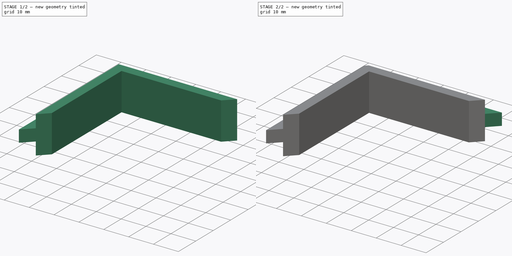
[diagram: build sequence overview — one tinted view per stage of 2, left to right]
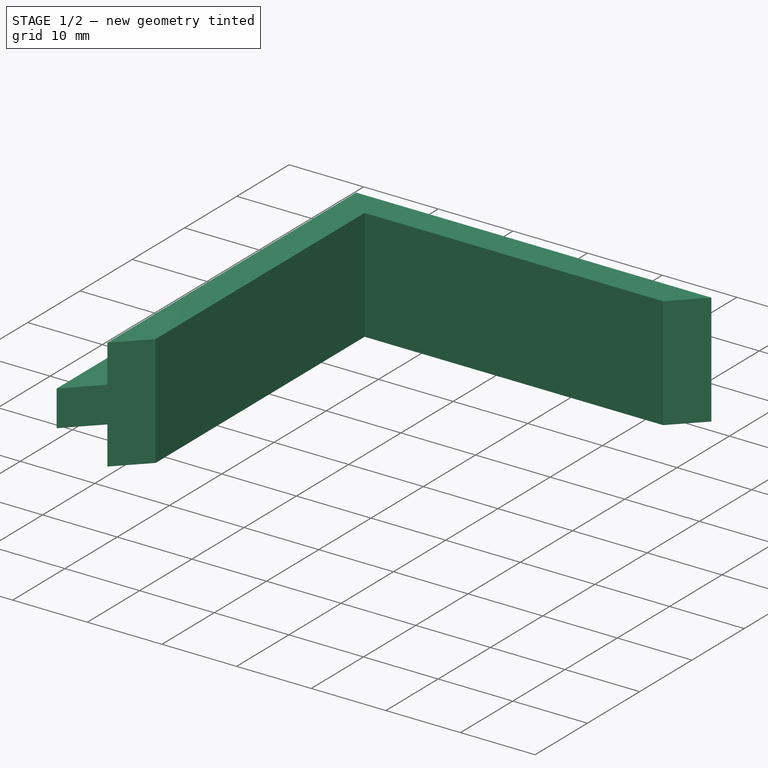
[diagram: stage 1 of 2 — iso view after this stage's code; geometry added in this stage tinted green]
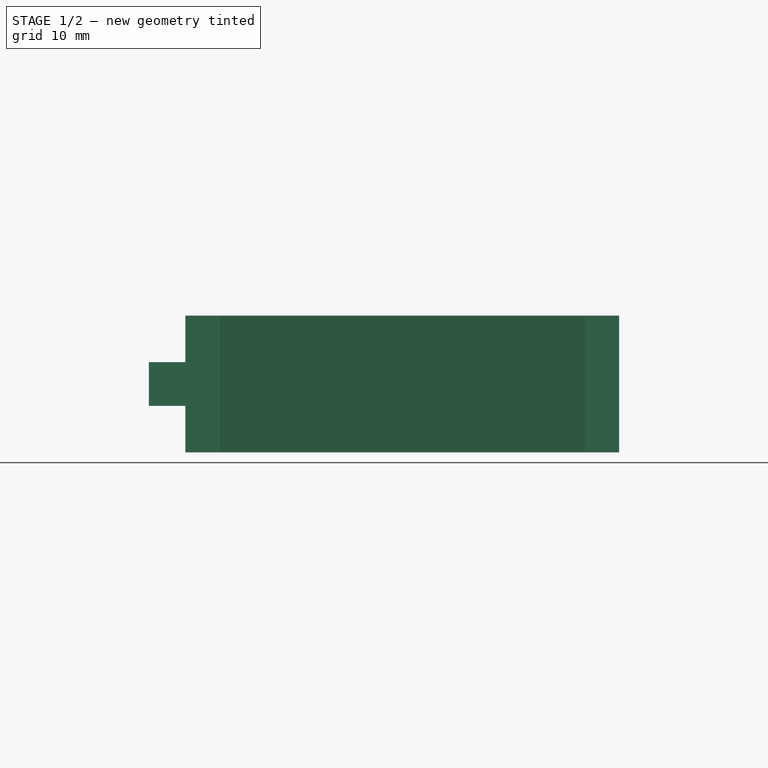
[diagram: stage 1 of 2 — front view after this stage's code; geometry added in this stage tinted green]
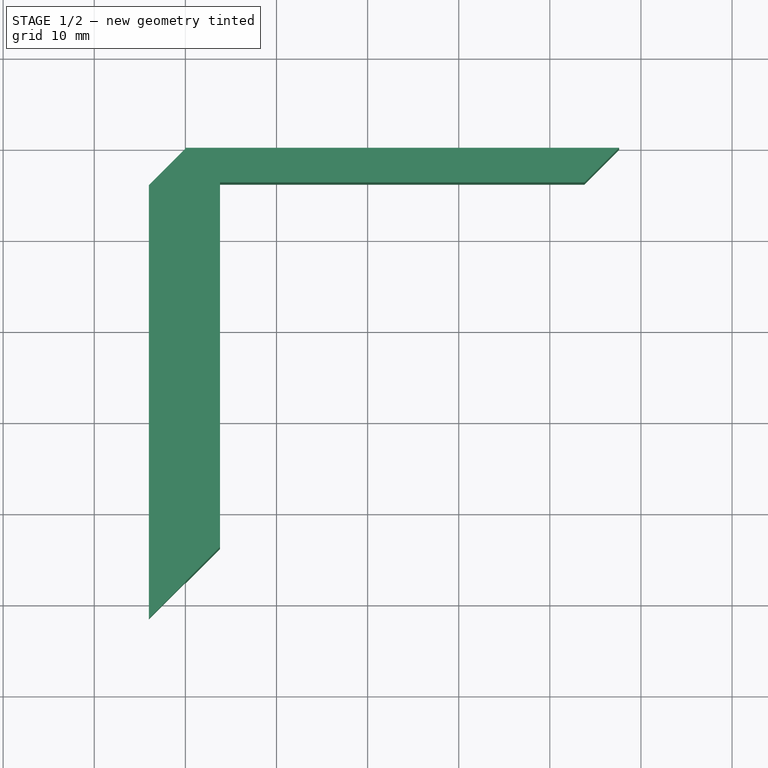
[diagram: stage 1 of 2 — top view after this stage's code; geometry added in this stage tinted green]
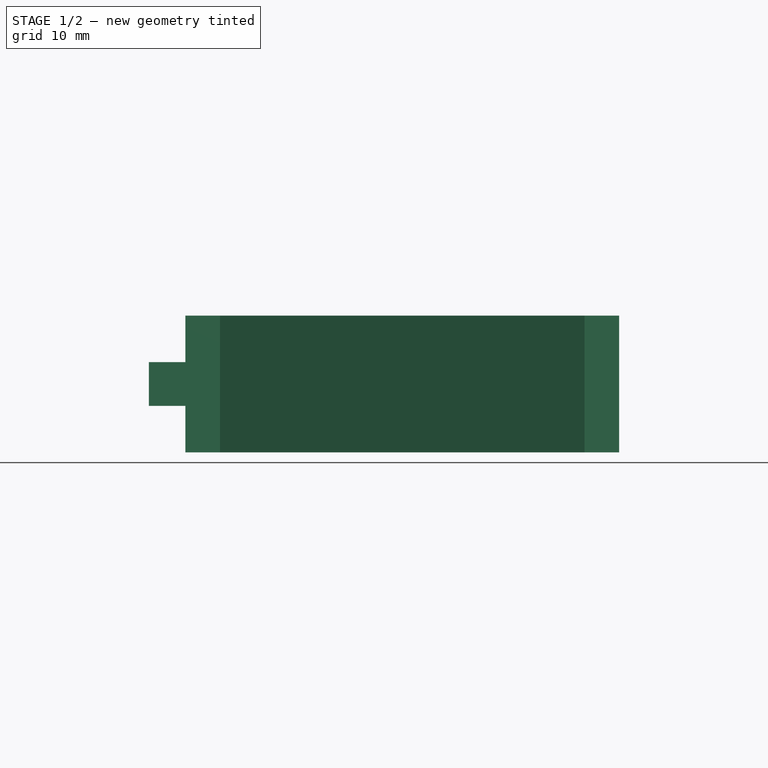
[diagram: stage 1 of 2 — right view after this stage's code; geometry added in this stage tinted green]
FCSTD DOCUMENT  (FreeCAD 1.0R39319 (Git))
Label: router_copy_ring_spacer_24mm_ring_16mm_bit
License: All rights reserved
LicenseURL: https://en.wikipedia.org/wiki/All_rights_reserved
objects: Sketcher::SketchObject×2, PartDesign::Pad×2, PartDesign::Plane×1, PartDesign::Mirrored×1, PartDesign::Chamfer×1, PartDesign::Body×1
note: 17 computed .brp shape members not serialized (recipe doc carries the construction recipe); baked Part::Feature solids carry a one-line shape summary decoded from their .brp

FEATURE [Sketcher::SketchObject] Sketch
  ArcFitTolerance = 1e-06
  AttachmentSupport = -> [XY_Plane]
  FullyConstrained = true
  MakeInternals = false
  MapMode = 5
  sketch-geometry (6):
    g0: LineSegment StartX=0 StartY=-47.6 StartZ=0 EndX=0 EndY=0 EndZ=0
    g1: LineSegment StartX=0 StartY=0 StartZ=0 EndX=47.6 EndY=0 EndZ=0
    g2: LineSegment StartX=47.6 StartY=0 StartZ=0 EndX=43.8 EndY=-3.8 EndZ=0
    g3: LineSegment StartX=43.8 StartY=-3.8 StartZ=0 EndX=3.8 EndY=-3.8 EndZ=0
    g4: LineSegment StartX=3.8 StartY=-3.8 StartZ=0 EndX=3.8 EndY=-43.8 EndZ=0
    g5: LineSegment StartX=3.8 StartY=-43.8 StartZ=0 EndX=0 EndY=-47.6 EndZ=0
  constraints (17):
    c: PointOnObject(g0,g-2)
    c: Coincident(g0,g-1)
    c: Coincident(g0,g1)
    c: PointOnObject(g1,g-1)
    c: Coincident(g1,g2)
    c: Coincident(g2,g3)
    c: Horizontal(g3)
    c: Coincident(g3,g4)
    c: Vertical(g4)
    c: Coincident(g4,g5)
    c: Coincident(g5,g0)
    c: Equal(g1,g0)
    c: Equal(g4,g3)
    c: Parallel(g5,g2)
    c: DistanceX(g3,g3) = 40
    c: DistanceY(g3,g0) = 3.8
    c: Equal(g5,g2)
FEATURE [PartDesign::Pad] Pad
  Direction = (0,0,1)
  Length = 15
  Length2 = 10
  Midplane = true
  Profile = -> Sketch
  ReferenceAxis = -> Sketch [N_Axis]
  Refine = true
  Suppressed = false
  Type = 0
FEATURE [Sketcher::SketchObject] Sketch001
  ArcFitTolerance = 1e-06
  AttachmentSupport = -> [XY_Plane]
  ExternalGeometry = -> [Pad]
  FullyConstrained = true
  MakeInternals = false
  MapMode = 5
  sketch-geometry (4):
    g0: LineSegment StartX=0 StartY=-47.6 StartZ=0 EndX=-4 EndY=-51.6 EndZ=0
    g1: LineSegment StartX=-4 StartY=-51.6 StartZ=0 EndX=-4 EndY=-4 EndZ=0
    g2: LineSegment StartX=-4 StartY=-4 StartZ=0 EndX=0 EndY=0 EndZ=0
    g3: LineSegment StartX=0 StartY=0 StartZ=0 EndX=0 EndY=-47.6 EndZ=0
  constraints (10):
    c: Coincident(g-3,g0)
    c: Coincident(g0,g1)
    c: Vertical(g1)
    c: Coincident(g1,g2)
    c: Coincident(g2,g-1)
    c: Coincident(g2,g3)
    c: Coincident(g3,g0)
    c: Parallel(g-3,g0)
    c: Parallel(g2,g0)
    c: DistanceY(g1,g2) = 4
FEATURE [PartDesign::Pad] Pad001
  BaseFeature = -> Pad
  Direction = (0,0,1)
  Length = 4.8
  Length2 = 10
  Midplane = true
  Profile = -> Sketch001
  ReferenceAxis = -> Sketch001 [N_Axis]
  Refine = true
  Suppressed = false
  Type = 0
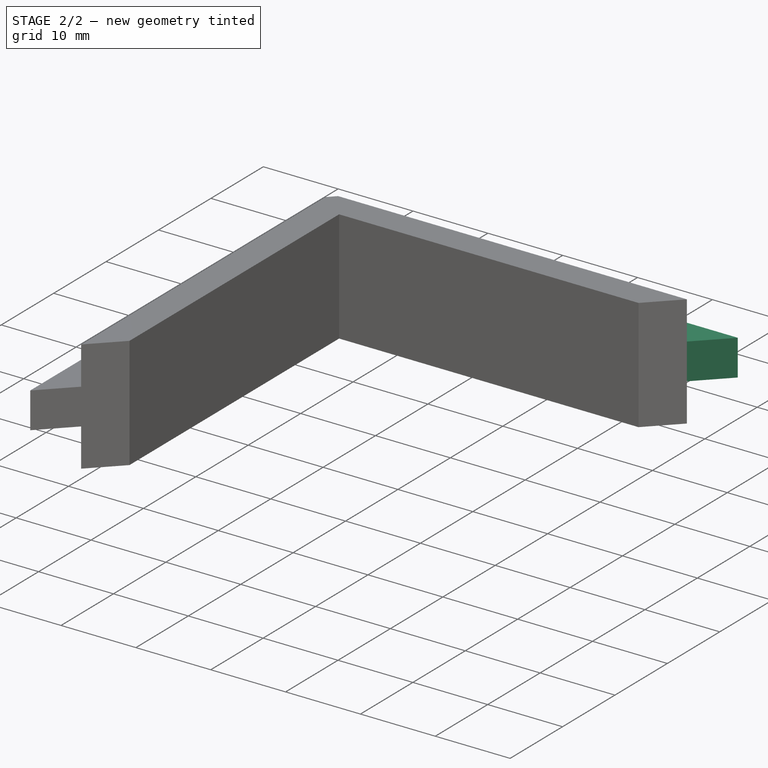
[diagram: stage 2 of 2 — iso view after this stage's code; geometry added in this stage tinted green]
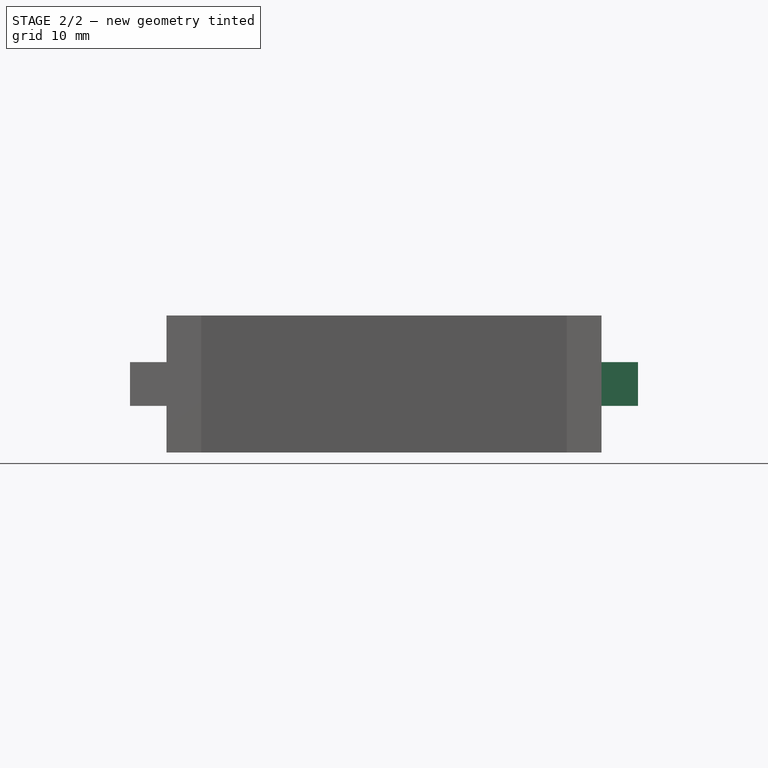
[diagram: stage 2 of 2 — front view after this stage's code; geometry added in this stage tinted green]
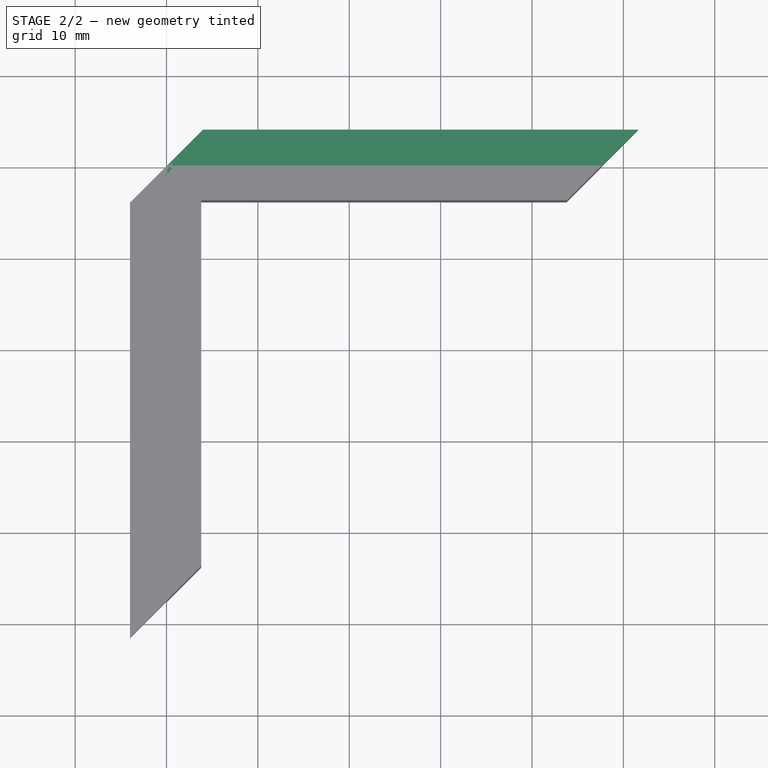
[diagram: stage 2 of 2 — top view after this stage's code; geometry added in this stage tinted green]
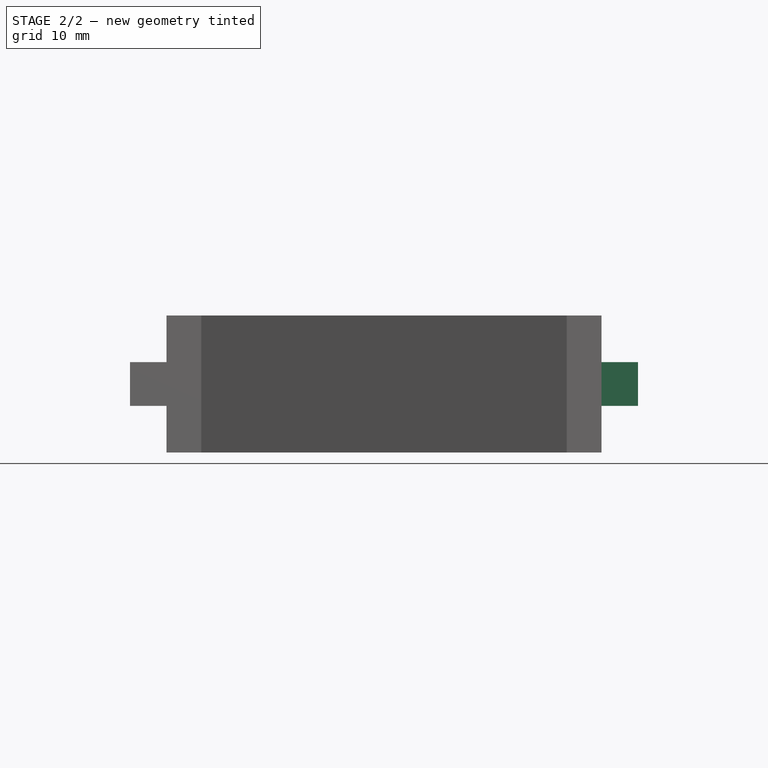
[diagram: stage 2 of 2 — right view after this stage's code; geometry added in this stage tinted green]
FEATURE [PartDesign::Plane] DatumPlane
  AttachmentOffset = pos=(0,0,0) rot=(0,1,0;0.785398rad)
  AttachmentSupport = -> [YZ_Plane]
  Length = 123.048
  MapMode = 5
  Placement = pos=(0,0,0) rot=(0.281085,0.678598,0.678598;2.59356rad)
  ResizeMode = 0
  Width = 64.7193
FEATURE [PartDesign::Mirrored] Mirrored
  BaseFeature = -> Pad001
  MirrorPlane = -> DatumPlane
  Originals = -> [Pad001]
  Refine = true
  Suppressed = false
  TransformMode = 0
FEATURE [PartDesign::Chamfer] Chamfer
  Angle = 45
  Base = -> Mirrored [Edge33,Edge2]
  BaseFeature = -> Mirrored
  ChamferType = 0
  FlipDirection = false
  Refine = true
  Size = 1
  Size2 = 1
  SupportTransform = false
  Suppressed = false
  UseAllEdges = false
FEATURE [PartDesign::Body] Body
  AllowCompound = false
  Group = -> [Sketch,Pad,Sketch001,Pad001,DatumPlane,Mirrored,Chamfer]
  Origin = -> Origin
  Tip = -> Chamfer
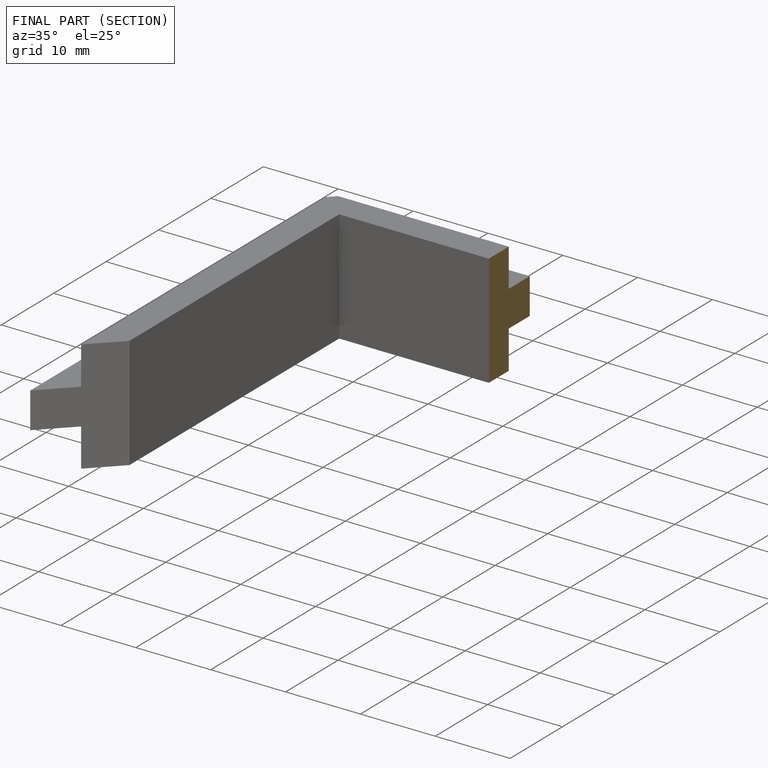
[diagram: finished part — half-section view (interior)]
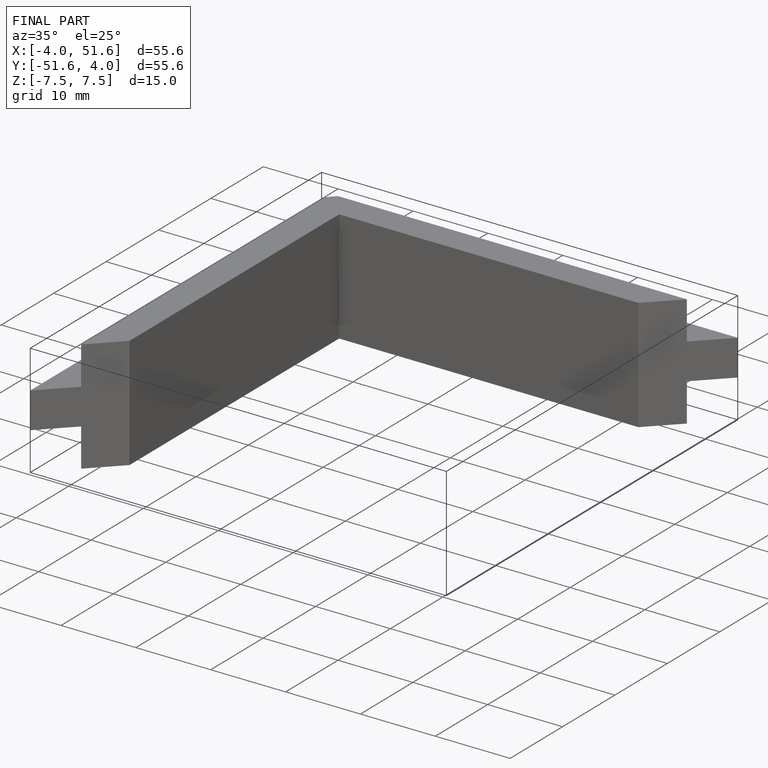
[diagram: finished part — iso view with bounding-box wireframe]
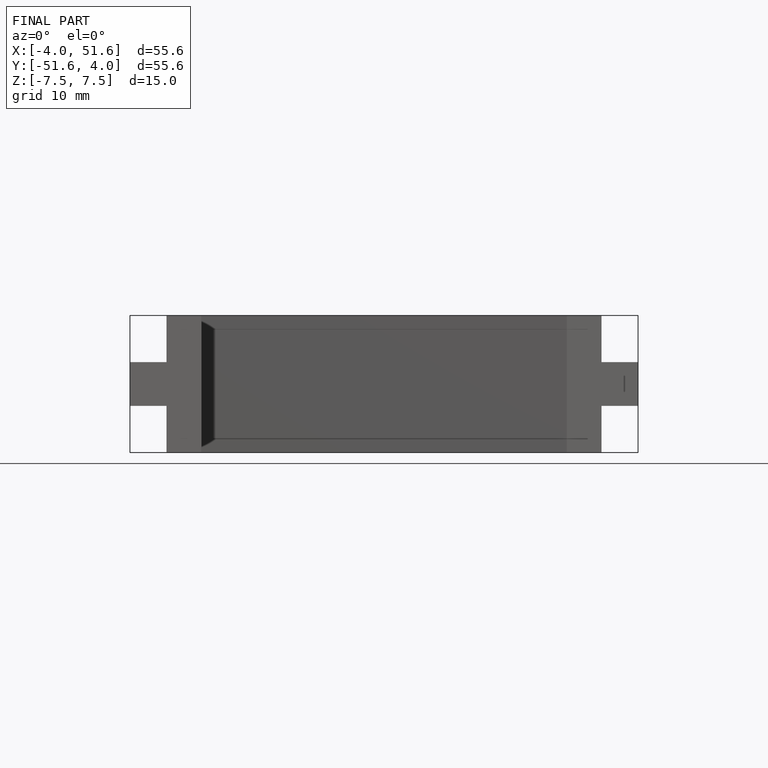
[diagram: finished part — front view with bounding-box wireframe]
